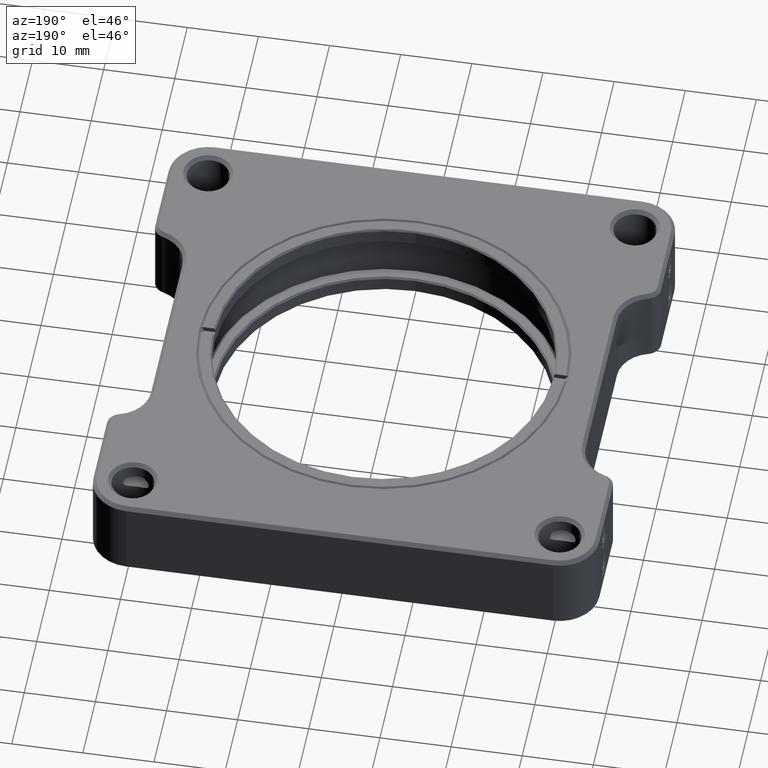
[diagram: clean part render]
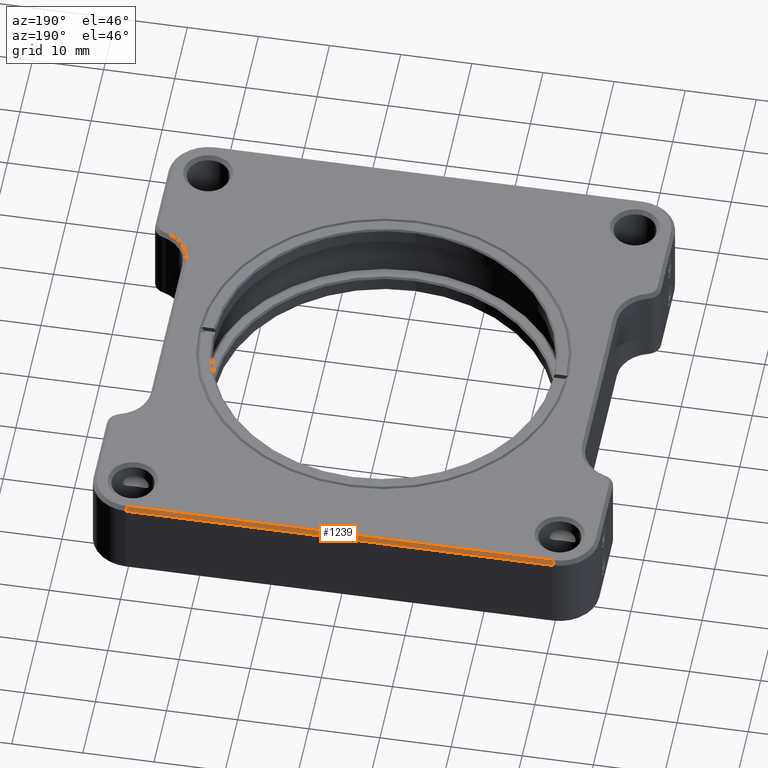
[diagram: same view with one face highlighted and labeled with its STEP entity id]
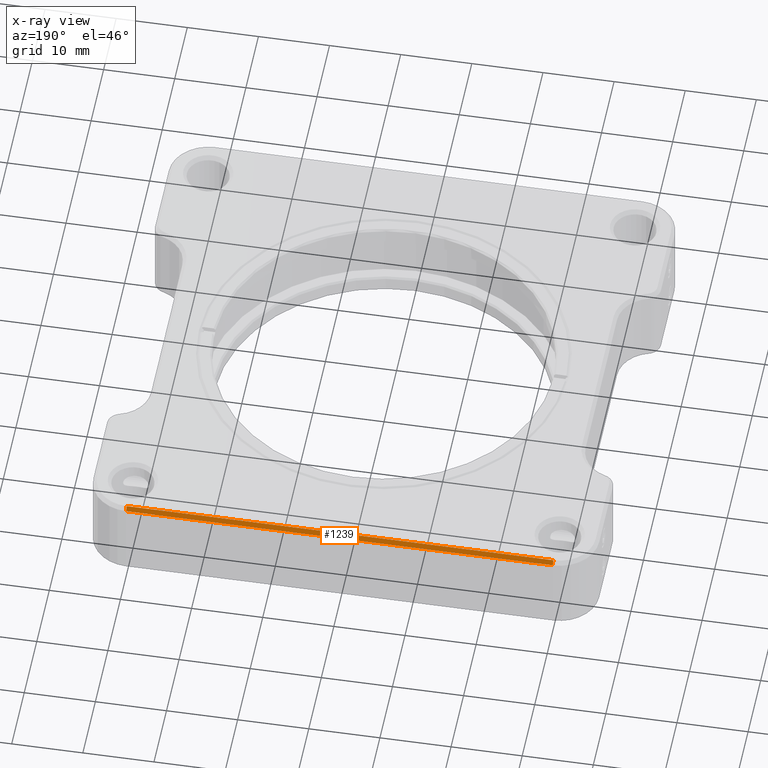
[diagram: x-ray of the same camera — body ghosted, the highlighted face saturated]
A machine part, auxiliary view. The second image highlights one B-rep face of the part: STEP entity #1239.
The next image is the same camera in x-ray: the body ghosted, the highlighted face saturated — about 0% of this face is hidden behind the body in this view.
In plain terms, the highlighted planar face has unit normal (-0, 0.7071, 0.7071).
Its self-contained STEP definition (entity closure, byte-faithful):
#1108 = CARTESIAN_POINT ( 'NONE',  ( 30.00000000000000000, 35.54999999999999005, 5.500000000000000000 ) ) ;
#1239 = ADVANCED_FACE ( 'NONE', ( #9143 ), #11497, .T. ) ;
#1318 = CARTESIAN_POINT ( 'NONE',  ( -30.00000000000000000, 35.04999999999999005, 6.000000000000000000 ) ) ;
#2326 = DIRECTION ( 'NONE',  ( 0.000000000000000000, -0.7071067811865474617, 0.7071067811865474617 ) ) ;
#2561 = DIRECTION ( 'NONE',  ( -1.000000000000000000, 0.000000000000000000, -0.000000000000000000 ) ) ;
#2586 = VECTOR ( 'NONE', #3388, 1000.000000000000114 ) ;
#2697 = LINE ( 'NONE', #12619, #5685 ) ;
#2723 = VERTEX_POINT ( 'NONE', #7030 ) ;
#2840 = VERTEX_POINT ( 'NONE', #1108 ) ;
#3388 = DIRECTION ( 'NONE',  ( 0.000000000000000000, 0.7071067811865474617, -0.7071067811865474617 ) ) ;
#3588 = CARTESIAN_POINT ( 'NONE',  ( -30.00000000000000000, 35.54999999999999005, 5.500000000000000000 ) ) ;
#3904 = AXIS2_PLACEMENT_3D ( 'NONE', #9838, #8632, #11640 ) ;
#3997 = ORIENTED_EDGE ( 'NONE', *, *, #6758, .F. ) ;
#4584 = EDGE_CURVE ( 'NONE', #8753, #8018, #6666, .T. ) ;
#5685 = VECTOR ( 'NONE', #2561, 1000.000000000000000 ) ;
#5698 = ORIENTED_EDGE ( 'NONE', *, *, #4584, .F. ) ;
#6177 = ORIENTED_EDGE ( 'NONE', *, *, #7290, .F. ) ;
#6666 = LINE ( 'NONE', #1318, #2586 ) ;
#6758 = EDGE_CURVE ( 'NONE', #2840, #2723, #7496, .T. ) ;
#7030 = CARTESIAN_POINT ( 'NONE',  ( 30.00000000000000000, 35.04999999999999005, 6.000000000000000000 ) ) ;
#7290 = EDGE_CURVE ( 'NONE', #8018, #2840, #12566, .T. ) ;
#7496 = LINE ( 'NONE', #11386, #8148 ) ;
#8018 = VERTEX_POINT ( 'NONE', #3588 ) ;
#8148 = VECTOR ( 'NONE', #2326, 1000.000000000000114 ) ;
#8183 = CARTESIAN_POINT ( 'NONE',  ( -30.00000000000000000, 35.04999999999999005, 6.000000000000000000 ) ) ;
#8632 = DIRECTION ( 'NONE',  ( -0.000000000000000000, 0.7071067811865475727, 0.7071067811865475727 ) ) ;
#8753 = VERTEX_POINT ( 'NONE', #8183 ) ;
#9143 = FACE_OUTER_BOUND ( 'NONE', #10066, .T. ) ;
#9206 = CARTESIAN_POINT ( 'NONE',  ( 30.00000000000000000, 35.54999999999999005, 5.500000000000000000 ) ) ;
#9838 = CARTESIAN_POINT ( 'NONE',  ( 0.000000000000000000, 35.04999999999999005, 6.000000000000000000 ) ) ;
#9905 = VECTOR ( 'NONE', #12290, 1000.000000000000000 ) ;
#10066 = EDGE_LOOP ( 'NONE', ( #3997, #6177, #5698, #10948 ) ) ;
#10948 = ORIENTED_EDGE ( 'NONE', *, *, #11540, .F. ) ;
#11386 = CARTESIAN_POINT ( 'NONE',  ( 30.00000000000000000, 35.54999999999999005, 5.500000000000000000 ) ) ;
#11497 = PLANE ( 'NONE',  #3904 ) ;
#11540 = EDGE_CURVE ( 'NONE', #2723, #8753, #2697, .T. ) ;
#11640 = DIRECTION ( 'NONE',  ( 1.000000000000000000, 0.000000000000000000, 0.000000000000000000 ) ) ;
#12290 = DIRECTION ( 'NONE',  ( 1.000000000000000000, 0.000000000000000000, 0.000000000000000000 ) ) ;
#12566 = LINE ( 'NONE', #9206, #9905 ) ;
#12619 = CARTESIAN_POINT ( 'NONE',  ( -30.00000000000000000, 35.04999999999999005, 6.000000000000000000 ) ) ;